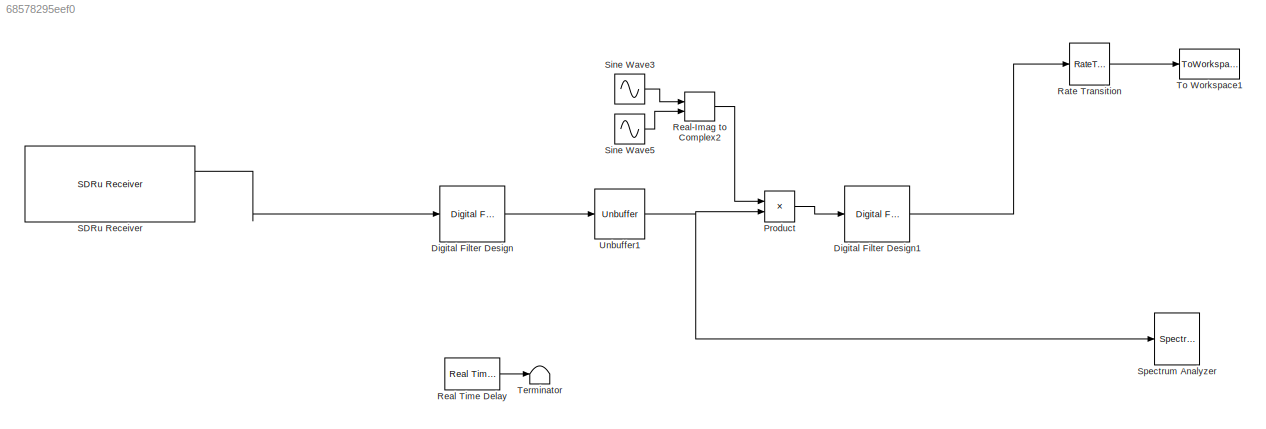
MODEL slx_68578295eef0
KIND model
BLOCK [Reference] Digital Filter Design  REF=dsparch4/Digital
Filter Design
  Commented = through
  Ports = [1, 1]
  SourceBlock = dsparch4/Digital\nFilter Design
  SourceType = Digital Filter Design
  UserDataPersistent = on
  mwdsp_browser_bugfix_var = off
BLOCK [Reference] Digital Filter Design1  REF=dsparch4/Digital
Filter Design
  Ports = [1, 1]
  SourceBlock = dsparch4/Digital\nFilter Design
  SourceType = Digital Filter Design
  UserDataPersistent = on
  mwdsp_browser_bugfix_var = off
BLOCK [Product] Product
  InputSameDT = off
  OutDataTypeStr = Inherit: Inherit via internal rule
  Ports = [2, 1]
  RndMeth = Floor
  SaturateOnIntegerOverflow = off
BLOCK [RateTransition] Rate Transition
  Deterministic = off
  OutPortSampleTime = 1/125000
BLOCK [Reference] Real Time Delay  REF=siglabs_lib/Real Time Delay
  Ports = [0, 1]
  SourceBlock = siglabs_lib/Real Time Delay
  TimeDelay = 2
BLOCK [RealImagToComplex] Real-Imag to Complex2
  Ports = [2, 1]
BLOCK [Reference] SDRu Receiver  REF=commsdrhw_v2/SDRu Receiver
  EnableBurstMode = off
  HOST_CONTROL_PORT = 0
  HOST_DATA_PORT = 0
  NumFramesInBurst = 1
  Ports = [0, 2]
  SourceBlock = commsdrhw_v2/SDRu Receiver
  SourceType = SDRu Receiver
  USRP2_CONTROL_PORT = 0
  USRP2_DATA_PORT = 0
  USRP2_IP = '192.168.10.2'
  USRP2_IP_NUM = [49 57 50 46 49 54 56 46 49 48 46 50]
  USRP_ID = '192.168.10.2'
  USRP_IP_X300 = '192.168.10.2'
  USRP_IP_X310 = '192.168.10.2'
  USRP_serialNumB200 = ''
  USRP_serialNumB210 = ''
  bufferMode = Continuous streaming
  centerFrequency = 915E6
  centerFrequencySrc = Dialog
  decimInterp = 512
  decimInterpSrc = Dialog
  frameLength = 1024
  gain = 0
  gainSrc = Dialog
  loOffset = 0
  loOffsetSrc = Dialog
  masterClkRateB200 = 32e6
  masterClkRateB210 = 32e6
  masterClkRateParam = 100e6
  masterClkRateX300 = 200e6
  masterClkRateX310 = 200e6
  outputDatatype = double
  overrunUnderrunPort = off
  platform = N200/N210/USRP2
  rxtx = rx
  sampleTime = 512/1E8
BLOCK [Sin] Sine Wave3
  Frequency = 2*pi*20000
  Phase = 1.5*pi
  Ports = [0, 1]
  SampleTime = 512/1E8
BLOCK [Sin] Sine Wave5
  Frequency = 2*pi*20000
  Ports = [0, 1]
  SampleTime = 512/1E8
BLOCK [SpectrumAnalyzer] Spectrum Analyzer
  Commented = on
  Ports = [1]
  ScopeSpecificationString = spbscopes.SpectrumAnalyzerBlockCfg('CurrentConfiguration', extmgr.ConfigurationSet(extmgr.Configuration('Core','General UI',true),extmgr.Configuration('Core','Source UI',true),extmgr.Configuration('Sources','WiredSimulink',true),extmgr.Configuration('Visuals','Spectrum',true,'AxesProperties',struct('Color',[0 0 0],'XColor',[0.686274509803922 0.686274509803922 0.686274509803922],'YColor',[0.6862745...<+6255ch>
BLOCK [Terminator] Terminator
BLOCK [ToWorkspace] To Workspace1
  FixptAsFi = on
  MaxDataPoints = inf
  Ports = [1]
  SampleTime = -1
  Save2DSignal = 2-D array (concatenate along first dimension)
  VariableName = rawdata
BLOCK [Unbuffer] Unbuffer1
  Ports = [1, 1]
  SampleBasedProcessing = Same as frame based
LINE Digital Filter Design1:1 -> Rate Transition:1
LINE Digital Filter Design:1 -> Unbuffer1:1
LINE Product:1 -> Digital Filter Design1:1
LINE Rate Transition:1 -> To Workspace1:1
LINE Real Time Delay:1 -> Terminator:1
LINE Real-Imag to Complex2:1 -> Product:1
LINE SDRu Receiver:1 -> Digital Filter Design:1
LINE Sine Wave3:1 -> Real-Imag to Complex2:1
LINE Sine Wave5:1 -> Real-Imag to Complex2:2
NET Unbuffer1:1 -> Product:2, Spectrum Analyzer:1
note: NET lines group one-source signal fan-out (src -> all destinations, sorted); 1:1 wires keep LINE
